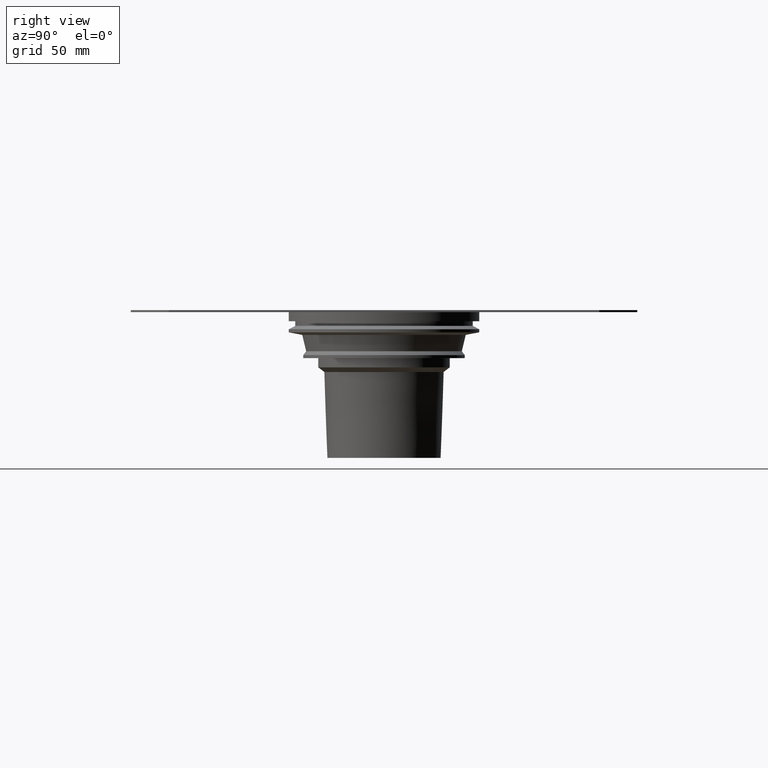
[diagram: clean part render]
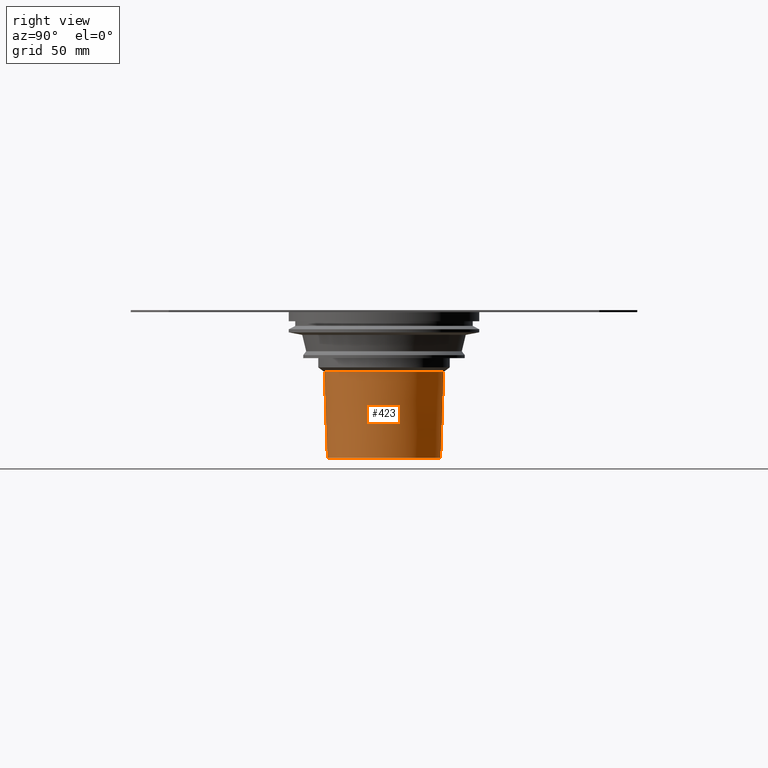
[diagram: same view with one face highlighted and labeled with its STEP entity id]
A machine part, right view. The second image highlights one B-rep face of the part: STEP entity #423.
In plain terms, the highlighted conical surface has half-angle 2.045 deg.
Its self-contained STEP definition (entity closure, byte-faithful):
#23=CONICAL_SURFACE('',#479,37.143,0.0356991126793241);
#144=ORIENTED_EDGE('',*,*,#220,.T.);
#145=ORIENTED_EDGE('',*,*,#219,.F.);
#219=EDGE_CURVE('',#257,#257,#279,.T.);
#220=EDGE_CURVE('',#258,#258,#280,.T.);
#257=VERTEX_POINT('',#716);
#258=VERTEX_POINT('',#719);
#279=CIRCLE('',#478,37.143);
#280=CIRCLE('',#480,39.143);
#318=EDGE_LOOP('',(#144));
#319=EDGE_LOOP('',(#145));
#372=FACE_BOUND('',#318,.T.);
#373=FACE_BOUND('',#319,.T.);
#423=ADVANCED_FACE('',(#372,#373),#23,.T.);
#478=AXIS2_PLACEMENT_3D('',#715,#586,#587);
#479=AXIS2_PLACEMENT_3D('',#717,#588,#589);
#480=AXIS2_PLACEMENT_3D('',#718,#590,#591);
#586=DIRECTION('',(0.,0.,-1.));
#587=DIRECTION('',(-1.,0.,0.));
#588=DIRECTION('',(0.,0.,1.));
#589=DIRECTION('',(1.,0.,0.));
#590=DIRECTION('',(0.,0.,-1.));
#591=DIRECTION('',(-1.,0.,0.));
#715=CARTESIAN_POINT('',(0.,0.,-95.));
#716=CARTESIAN_POINT('',(-37.143,0.,-95.));
#717=CARTESIAN_POINT('',(0.,0.,-95.));
#718=CARTESIAN_POINT('',(0.,0.,-39.));
#719=CARTESIAN_POINT('',(-39.143,0.,-39.));